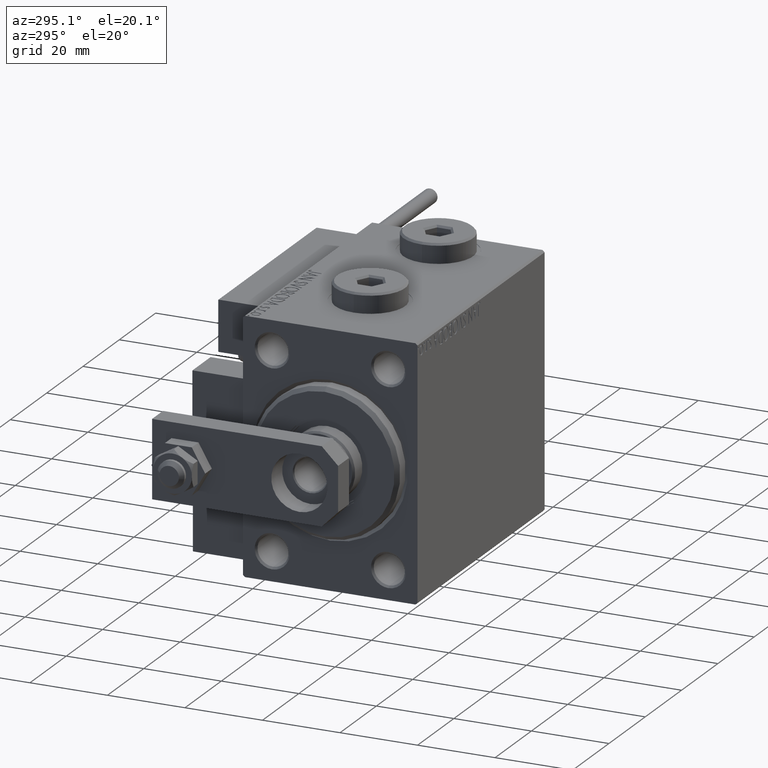
[diagram: clean part render]
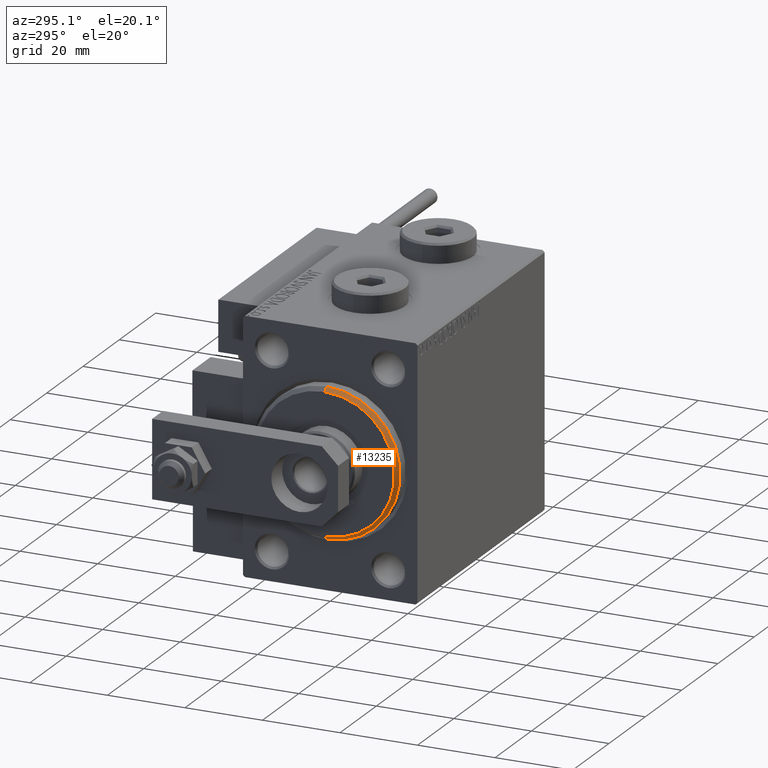
[diagram: same view with one face highlighted and labeled with its STEP entity id]
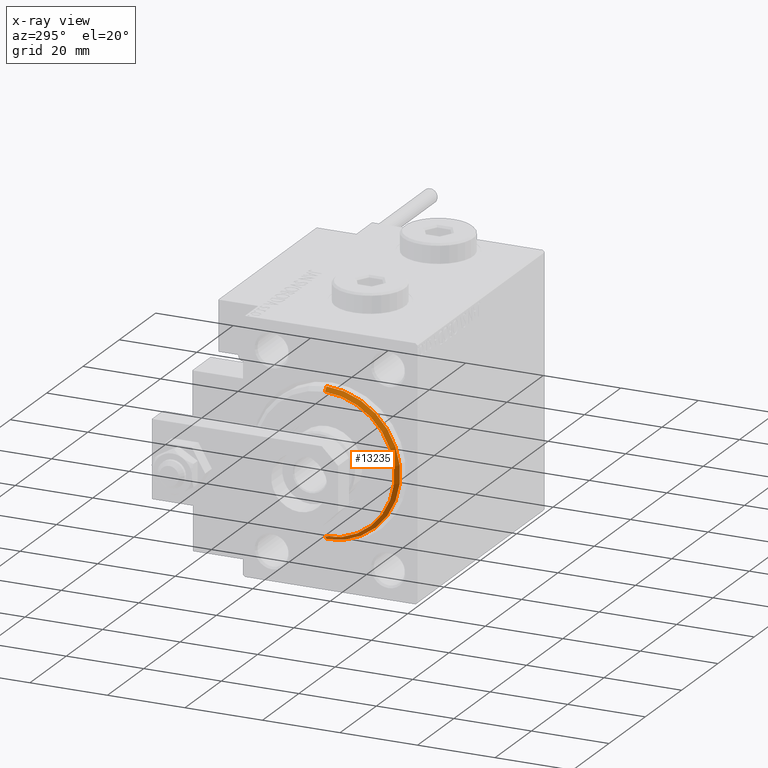
[diagram: x-ray of the same camera — body ghosted, the highlighted face saturated]
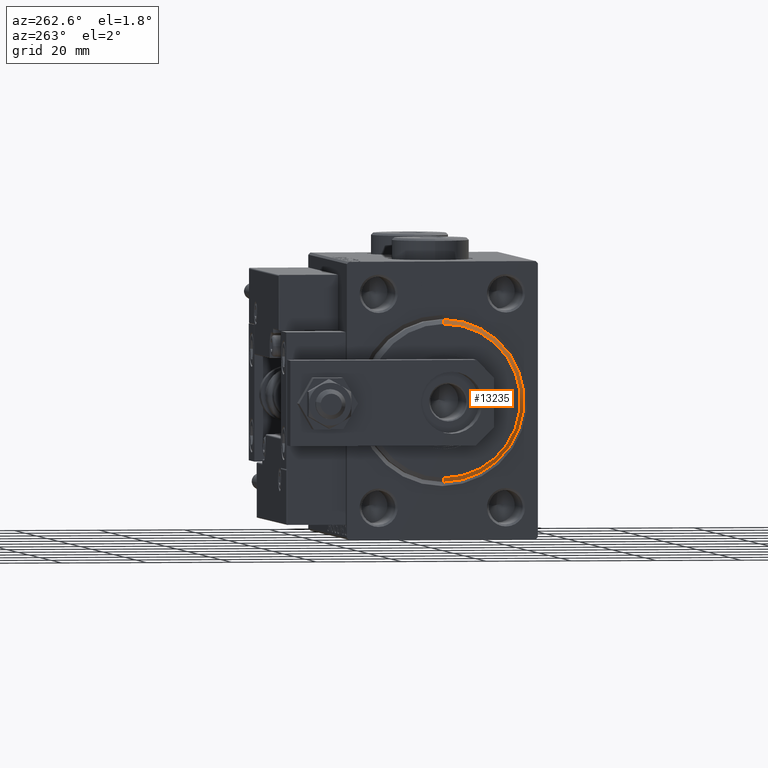
[diagram: same view with one face highlighted and labeled with its STEP entity id]
A machine part, auxiliary view. The second image highlights one B-rep face of the part: STEP entity #13235.
The next image is the same camera in x-ray: the body ghosted, the highlighted face saturated — about 0% of this face is hidden behind the body in this view.
A second angle (auxiliary view) of the same face is appended — the face is thin or edge-on in the first view.
In plain terms, the highlighted conical surface has half-angle 45 deg.
Its self-contained STEP definition (entity closure, byte-faithful):
#3063 = EDGE_CURVE ( 'NONE', #13014, #28253, #42115, .T. ) ;
#3672 = CONICAL_SURFACE ( 'NONE', #19812, 17.99999999999999645, 0.7853981633974466137 ) ;
#4614 = DIRECTION ( 'NONE',  ( 0.000000000000000000, 0.000000000000000000, 1.000000000000000000 ) ) ;
#6556 = CARTESIAN_POINT ( 'NONE',  ( 3.000000000000000000, 2.204364238465235033E-15, -17.99999999999999645 ) ) ;
#6810 = DIRECTION ( 'NONE',  ( -0.7071067811865487940, 8.659560562354918067E-17, -0.7071067811865463515 ) ) ;
#8709 = EDGE_CURVE ( 'NONE', #22448, #39263, #38788, .T. ) ;
#9635 = DIRECTION ( 'NONE',  ( -1.000000000000000000, 0.000000000000000000, 0.000000000000000000 ) ) ;
#13014 = VERTEX_POINT ( 'NONE', #49598 ) ;
#13235 = ADVANCED_FACE ( 'NONE', ( #41293 ), #3672, .T. ) ;
#15553 = CARTESIAN_POINT ( 'NONE',  ( 1.999999999999992228, 0.000000000000000000, 0.000000000000000000 ) ) ;
#18744 = DIRECTION ( 'NONE',  ( -0.7071067811865487940, 0.000000000000000000, 0.7071067811865463515 ) ) ;
#19812 = AXIS2_PLACEMENT_3D ( 'NONE', #49798, #9635, #4614 ) ;
#20493 = VECTOR ( 'NONE', #18744, 1000.000000000000000 ) ;
#20984 = LINE ( 'NONE', #46917, #20493 ) ;
#22448 = VERTEX_POINT ( 'NONE', #43039 ) ;
#23812 = DIRECTION ( 'NONE',  ( -1.000000000000000000, 0.000000000000000000, 0.000000000000000000 ) ) ;
#28253 = VERTEX_POINT ( 'NONE', #49699 ) ;
#30056 = DIRECTION ( 'NONE',  ( 1.000000000000000000, -0.000000000000000000, 0.000000000000000000 ) ) ;
#31732 = CARTESIAN_POINT ( 'NONE',  ( 1.999999999999992228, 2.326828918379970970E-15, -19.00000000000000000 ) ) ;
#31992 = AXIS2_PLACEMENT_3D ( 'NONE', #15553, #23812, #40013 ) ;
#32756 = AXIS2_PLACEMENT_3D ( 'NONE', #42040, #30056, #46566 ) ;
#33876 = ORIENTED_EDGE ( 'NONE', *, *, #8709, .F. ) ;
#35816 = VECTOR ( 'NONE', #6810, 1000.000000000000000 ) ;
#38788 = CIRCLE ( 'NONE', #31992, 19.00000000000000000 ) ;
#39222 = ORIENTED_EDGE ( 'NONE', *, *, #47035, .T. ) ;
#39263 = VERTEX_POINT ( 'NONE', #31732 ) ;
#40013 = DIRECTION ( 'NONE',  ( 0.000000000000000000, 0.000000000000000000, -1.000000000000000000 ) ) ;
#41293 = FACE_OUTER_BOUND ( 'NONE', #51550, .T. ) ;
#42040 = CARTESIAN_POINT ( 'NONE',  ( 3.000000000000000000, 0.000000000000000000, 0.000000000000000000 ) ) ;
#42115 = CIRCLE ( 'NONE', #32756, 17.99999999999999645 ) ;
#43039 = CARTESIAN_POINT ( 'NONE',  ( 1.999999999999992228, 0.000000000000000000, 19.00000000000000000 ) ) ;
#43220 = LINE ( 'NONE', #6556, #35816 ) ;
#43491 = ORIENTED_EDGE ( 'NONE', *, *, #3063, .F. ) ;
#44855 = EDGE_CURVE ( 'NONE', #28253, #22448, #20984, .T. ) ;
#46566 = DIRECTION ( 'NONE',  ( 0.000000000000000000, 0.000000000000000000, -1.000000000000000000 ) ) ;
#46909 = ORIENTED_EDGE ( 'NONE', *, *, #44855, .F. ) ;
#46917 = CARTESIAN_POINT ( 'NONE',  ( 3.000000000000000000, 0.000000000000000000, 17.99999999999999645 ) ) ;
#47035 = EDGE_CURVE ( 'NONE', #13014, #39263, #43220, .T. ) ;
#49598 = CARTESIAN_POINT ( 'NONE',  ( 3.000000000000000000, 2.265596578422603002E-15, -17.99999999999999645 ) ) ;
#49699 = CARTESIAN_POINT ( 'NONE',  ( 3.000000000000000000, 0.000000000000000000, 17.99999999999999645 ) ) ;
#49798 = CARTESIAN_POINT ( 'NONE',  ( 3.000000000000000000, 0.000000000000000000, 0.000000000000000000 ) ) ;
#51550 = EDGE_LOOP ( 'NONE', ( #43491, #39222, #33876, #46909 ) ) ;